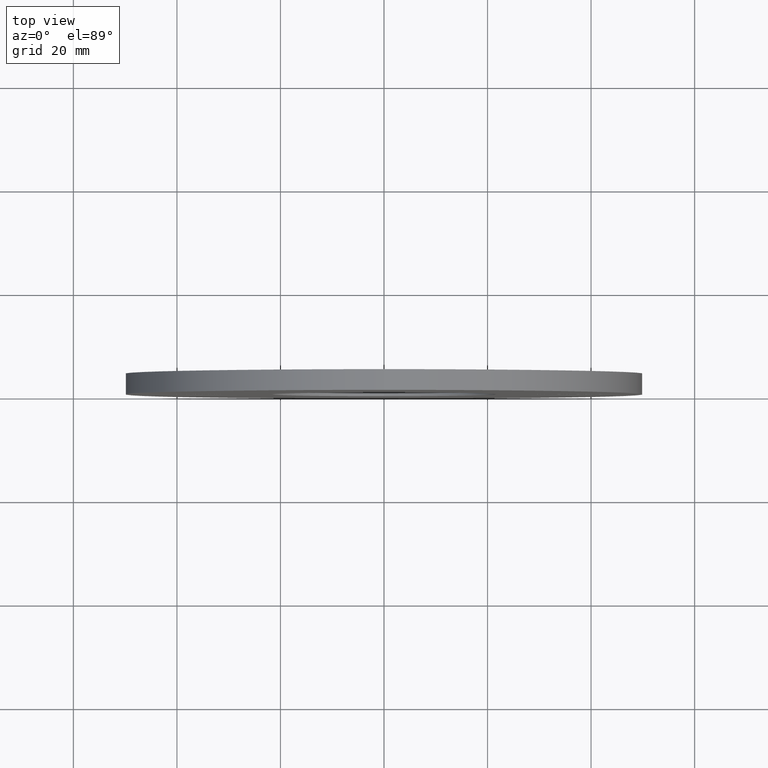
[diagram: clean part render]
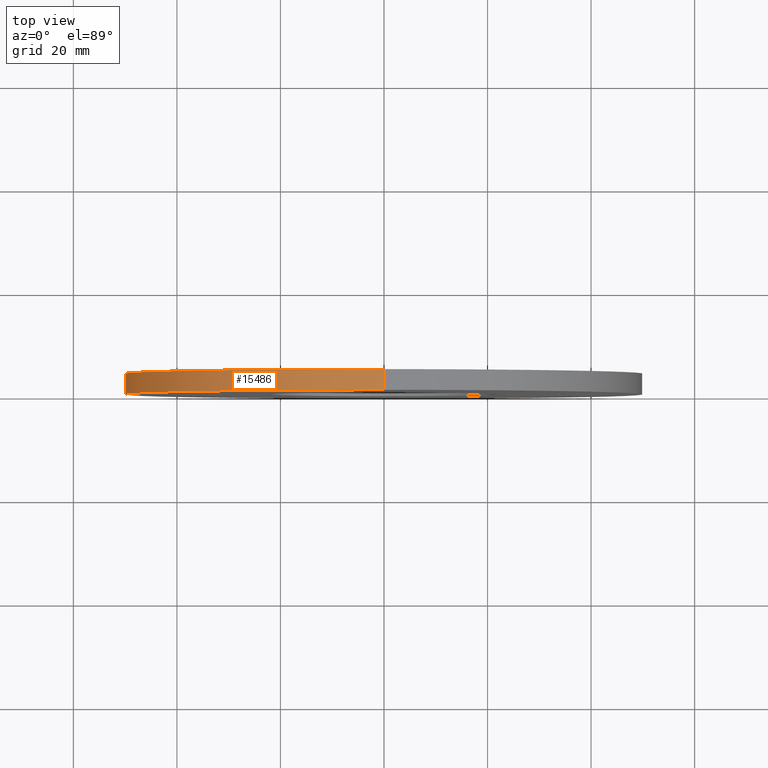
[diagram: same view with one face highlighted and labeled with its STEP entity id]
A machine part, top view. The second image highlights one B-rep face of the part: STEP entity #15486.
In plain terms, the highlighted cylindrical surface (partial cylindrical patch) has radius 50 mm, axis along (-0, -1, -0).
Its self-contained STEP definition (entity closure, byte-faithful):
#1427 = EDGE_LOOP ( 'NONE', ( #8187, #8757, #2723, #4324 ) ) ;
#1462 = CIRCLE ( 'NONE', #7798, 50.00000000000000000 ) ;
#1772 = CARTESIAN_POINT ( 'NONE',  ( 0.000000000000000000, 4.000000000000000000, -50.00000000000000000 ) ) ;
#2107 = CARTESIAN_POINT ( 'NONE',  ( 0.000000000000000000, 4.000000000000000000, -50.00000000000000000 ) ) ;
#2521 = CARTESIAN_POINT ( 'NONE',  ( 0.000000000000000000, 4.000000000000000000, 0.000000000000000000 ) ) ;
#2573 = DIRECTION ( 'NONE',  ( 0.000000000000000000, 0.000000000000000000, 1.000000000000000000 ) ) ;
#2723 = ORIENTED_EDGE ( 'NONE', *, *, #4141, .T. ) ;
#3034 = LINE ( 'NONE', #11624, #12507 ) ;
#3885 = AXIS2_PLACEMENT_3D ( 'NONE', #13955, #12581, #11500 ) ;
#4141 = EDGE_CURVE ( 'NONE', #12089, #7183, #15390, .T. ) ;
#4324 = ORIENTED_EDGE ( 'NONE', *, *, #7169, .T. ) ;
#4448 = AXIS2_PLACEMENT_3D ( 'NONE', #2521, #14590, #2573 ) ;
#5457 = CYLINDRICAL_SURFACE ( 'NONE', #3885, 50.00000000000000000 ) ;
#5638 = CARTESIAN_POINT ( 'NONE',  ( 0.000000000000000000, 0.000000000000000000, 0.000000000000000000 ) ) ;
#6580 = EDGE_CURVE ( 'NONE', #10080, #10224, #3034, .T. ) ;
#6600 = EDGE_CURVE ( 'NONE', #12089, #10080, #9647, .T. ) ;
#6657 = DIRECTION ( 'NONE',  ( 0.000000000000000000, 0.000000000000000000, 1.000000000000000000 ) ) ;
#6805 = DIRECTION ( 'NONE',  ( 0.000000000000000000, 1.000000000000000000, 0.000000000000000000 ) ) ;
#7169 = EDGE_CURVE ( 'NONE', #7183, #10224, #1462, .T. ) ;
#7183 = VERTEX_POINT ( 'NONE', #15242 ) ;
#7798 = AXIS2_PLACEMENT_3D ( 'NONE', #5638, #6805, #6657 ) ;
#7964 = CARTESIAN_POINT ( 'NONE',  ( 6.123233995736766085E-15, 0.000000000000000000, 50.00000000000000000 ) ) ;
#8187 = ORIENTED_EDGE ( 'NONE', *, *, #6580, .F. ) ;
#8757 = ORIENTED_EDGE ( 'NONE', *, *, #6600, .F. ) ;
#9619 = DIRECTION ( 'NONE',  ( -0.000000000000000000, -1.000000000000000000, -0.000000000000000000 ) ) ;
#9647 = CIRCLE ( 'NONE', #4448, 50.00000000000000000 ) ;
#9783 = FACE_OUTER_BOUND ( 'NONE', #1427, .T. ) ;
#10080 = VERTEX_POINT ( 'NONE', #15483 ) ;
#10224 = VERTEX_POINT ( 'NONE', #7964 ) ;
#10718 = DIRECTION ( 'NONE',  ( -0.000000000000000000, -1.000000000000000000, -0.000000000000000000 ) ) ;
#11500 = DIRECTION ( 'NONE',  ( 0.000000000000000000, 0.000000000000000000, -1.000000000000000000 ) ) ;
#11624 = CARTESIAN_POINT ( 'NONE',  ( 6.123233995736766085E-15, 4.000000000000000000, 50.00000000000000000 ) ) ;
#12089 = VERTEX_POINT ( 'NONE', #1772 ) ;
#12176 = VECTOR ( 'NONE', #10718, 1000.000000000000000 ) ;
#12507 = VECTOR ( 'NONE', #9619, 1000.000000000000000 ) ;
#12581 = DIRECTION ( 'NONE',  ( -0.000000000000000000, -1.000000000000000000, -0.000000000000000000 ) ) ;
#13955 = CARTESIAN_POINT ( 'NONE',  ( 0.000000000000000000, 4.000000000000000000, 0.000000000000000000 ) ) ;
#14590 = DIRECTION ( 'NONE',  ( 0.000000000000000000, 1.000000000000000000, 0.000000000000000000 ) ) ;
#15242 = CARTESIAN_POINT ( 'NONE',  ( 0.000000000000000000, 0.000000000000000000, -50.00000000000000000 ) ) ;
#15390 = LINE ( 'NONE', #2107, #12176 ) ;
#15483 = CARTESIAN_POINT ( 'NONE',  ( 6.123233995736766085E-15, 4.000000000000000000, 50.00000000000000000 ) ) ;
#15486 = ADVANCED_FACE ( 'NONE', ( #9783 ), #5457, .T. ) ;